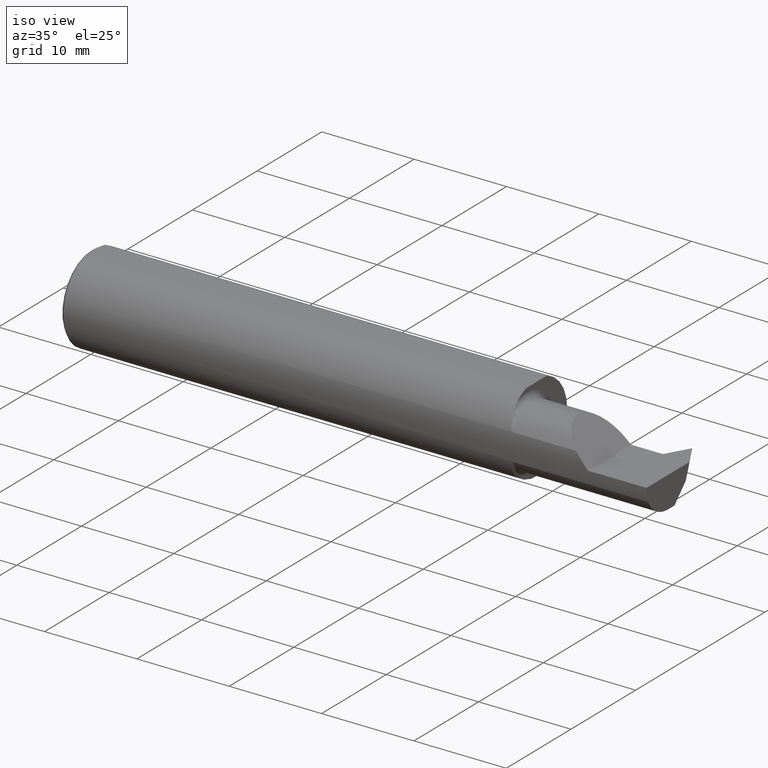
[diagram: clean part render]
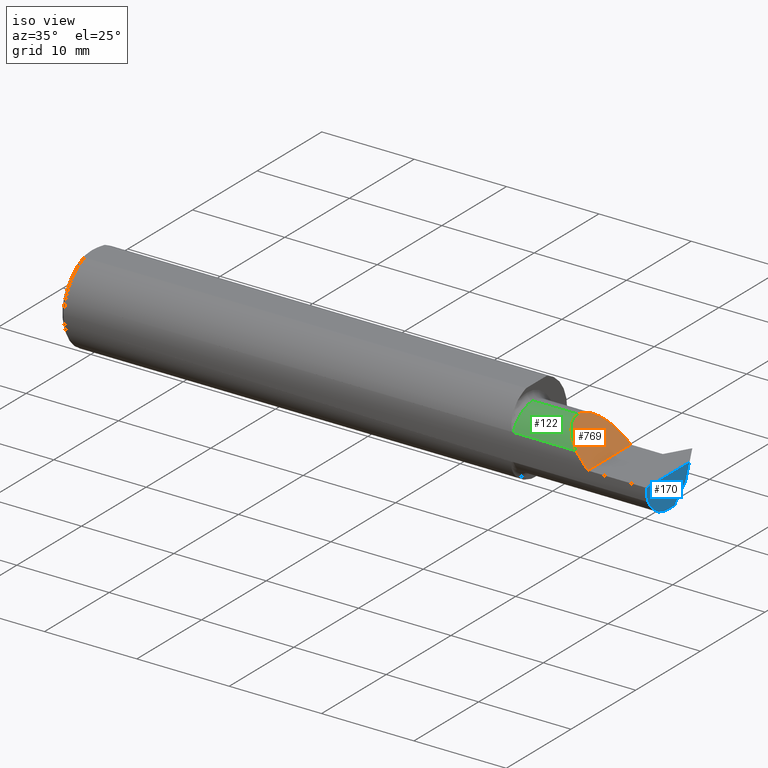
[diagram: same view with three faces highlighted in distinct colors, each labeled with its STEP entity id]
A machine part, iso view with three faces highlighted in distinct colors.
Their STEP definitions:

[orange] entity #769 — the highlighted planar face has unit normal (-0.7071, 0, -0.7071).
#38 = EDGE_CURVE ( 'NONE', #373, #599, #238, .T. ) ;
#106 = CARTESIAN_POINT ( 'NONE',  ( 2.145120520002822495, -0.1556549305389025584, 0.1048794799971762975 ) ) ;
#107 = EDGE_CURVE ( 'NONE', #369, #373, #351, .T. ) ;
#163 = ORIENTED_EDGE ( 'NONE', *, *, #107, .F. ) ;
#169 = ORIENTED_EDGE ( 'NONE', *, *, #188, .T. ) ;
#188 = EDGE_CURVE ( 'NONE', #369, #701, #266, .T. ) ;
#220 = CARTESIAN_POINT ( 'NONE',  ( 2.250000000000000000, -0.1873499999999999888, 9.184850993605143507E-17 ) ) ;
#238 =( BOUNDED_CURVE ( )  B_SPLINE_CURVE ( 3, ( #879, #106, #799, #386 ),
 .UNSPECIFIED., .F., .F. ) 
 B_SPLINE_CURVE_WITH_KNOTS ( ( 4, 4 ),
 ( 5.157869252308511676, 6.283185307179586232 ),
 .UNSPECIFIED. ) 
 CURVE ( )  GEOMETRIC_REPRESENTATION_ITEM ( )  RATIONAL_B_SPLINE_CURVE ( ( 1.000000000000000000, 0.8972268081433718567, 0.8972268081433718567, 1.000000000000000000 ) ) 
 REPRESENTATION_ITEM ( '' )  );
#255 = ORIENTED_EDGE ( 'NONE', *, *, #586, .F. ) ;
#266 = LINE ( 'NONE', #692, #800 ) ;
#340 = CARTESIAN_POINT ( 'NONE',  ( 2.192691453216395914, -0.1783697086546688348, 0.05730854678360401688 ) ) ;
#349 = FACE_OUTER_BOUND ( 'NONE', #658, .T. ) ;
#351 =( BOUNDED_CURVE ( )  B_SPLINE_CURVE ( 3, ( #517, #735, #665, #340 ),
 .UNSPECIFIED., .F., .F. ) 
 B_SPLINE_CURVE_WITH_KNOTS ( ( 4, 4 ),
 ( 4.712388980384690562, 5.023262387692875919 ),
 .UNSPECIFIED. ) 
 CURVE ( )  GEOMETRIC_REPRESENTATION_ITEM ( )  RATIONAL_B_SPLINE_CURVE ( ( 1.000000000000000000, 0.9919626788073498957, 0.9919626788073498957, 1.000000000000000000 ) ) 
 REPRESENTATION_ITEM ( '' )  );
#361 = CARTESIAN_POINT ( 'NONE',  ( 2.250000000000000000, -0.2500000000000000555, 9.184850993605143507E-17 ) ) ;
#369 = VERTEX_POINT ( 'NONE', #220 ) ;
#373 = VERTEX_POINT ( 'NONE', #502 ) ;
#386 = CARTESIAN_POINT ( 'NONE',  ( 2.116999999999998661, -0.05835000000000021420, 0.1330000000000001736 ) ) ;
#420 = DIRECTION ( 'NONE',  ( -0.7071067811865511255, 0.000000000000000000, 0.7071067811865440200 ) ) ;
#467 = CARTESIAN_POINT ( 'NONE',  ( 2.250000000000000000, 0.07464999999999995250, 2.204364238465232864E-16 ) ) ;
#496 = DIRECTION ( 'NONE',  ( -0.7071067811865440200, 0.000000000000000000, -0.7071067811865511255 ) ) ;
#502 = CARTESIAN_POINT ( 'NONE',  ( 2.192691453216395914, -0.1783697086546688348, 0.05730854678360401688 ) ) ;
#514 =( BOUNDED_CURVE ( )  B_SPLINE_CURVE ( 3, ( #536, #750, #756, #467 ),
 .UNSPECIFIED., .F., .F. ) 
 B_SPLINE_CURVE_WITH_KNOTS ( ( 4, 4 ),
 ( 0.000000000000000000, 1.570796326794895892 ),
 .UNSPECIFIED. ) 
 CURVE ( )  GEOMETRIC_REPRESENTATION_ITEM ( )  RATIONAL_B_SPLINE_CURVE ( ( 1.000000000000000000, 0.8047378541243652705, 0.8047378541243652705, 1.000000000000000000 ) ) 
 REPRESENTATION_ITEM ( '' )  );
#517 = CARTESIAN_POINT ( 'NONE',  ( 2.250000000000000000, -0.1873499999999999888, 9.184850993605143507E-17 ) ) ;
#536 = CARTESIAN_POINT ( 'NONE',  ( 2.116999999999998661, -0.05835000000000021420, 0.1330000000000001736 ) ) ;
#583 = PLANE ( 'NONE',  #655 ) ;
#586 = EDGE_CURVE ( 'NONE', #599, #701, #514, .T. ) ;
#599 = VERTEX_POINT ( 'NONE', #820 ) ;
#611 = CARTESIAN_POINT ( 'NONE',  ( 2.250000000000000000, 0.07464999999999995250, 2.204364238465232864E-16 ) ) ;
#655 = AXIS2_PLACEMENT_3D ( 'NONE', #361, #496, #420 ) ;
#658 = EDGE_LOOP ( 'NONE', ( #790, #163, #169, #255 ) ) ;
#665 = CARTESIAN_POINT ( 'NONE',  ( 2.211249739839921347, -0.1843323154515825735, 0.03875026016007859092 ) ) ;
#692 = CARTESIAN_POINT ( 'NONE',  ( 2.250000000000000000, -0.2500000000000000555, 9.184850993605143507E-17 ) ) ;
#701 = VERTEX_POINT ( 'NONE', #611 ) ;
#735 = CARTESIAN_POINT ( 'NONE',  ( 2.230507368514858868, -0.1873500000000000165, 0.01949263148514139912 ) ) ;
#750 = CARTESIAN_POINT ( 'NONE',  ( 2.116999999999998661, 0.01955959620437818999, 0.1330000000000002014 ) ) ;
#756 = CARTESIAN_POINT ( 'NONE',  ( 2.172090403795620794, 0.07464999999999989699, 0.07790959620437852562 ) ) ;
#769 = ADVANCED_FACE ( 'NONE', ( #349 ), #583, .F. ) ;
#790 = ORIENTED_EDGE ( 'NONE', *, *, #38, .F. ) ;
#799 = CARTESIAN_POINT ( 'NONE',  ( 2.116999999999998661, -0.1110657930003779298, 0.1330000000000002014 ) ) ;
#800 = VECTOR ( 'NONE', #834, 39.37007874015748143 ) ;
#820 = CARTESIAN_POINT ( 'NONE',  ( 2.116999999999998661, -0.05835000000000021420, 0.1330000000000001736 ) ) ;
#834 = DIRECTION ( 'NONE',  ( -0.000000000000000000, 1.000000000000000000, -0.000000000000000000 ) ) ;
#879 = CARTESIAN_POINT ( 'NONE',  ( 2.192691453216395914, -0.1783697086546688348, 0.05730854678360401688 ) ) ;

[blue] entity #170 — the highlighted planar face has unit normal (-1, 0, -0).
#51 = DIRECTION ( 'NONE',  ( 0.000000000000000000, 0.000000000000000000, 1.000000000000000000 ) ) ;
#77 = VERTEX_POINT ( 'NONE', #752 ) ;
#78 = EDGE_CURVE ( 'NONE', #442, #317, #391, .T. ) ;
#83 = AXIS2_PLACEMENT_3D ( 'NONE', #195, #190, #686 ) ;
#120 = DIRECTION ( 'NONE',  ( 0.000000000000000000, 0.3401001459858907228, 0.9403892229818331394 ) ) ;
#133 = LINE ( 'NONE', #413, #506 ) ;
#170 = ADVANCED_FACE ( 'NONE', ( #347 ), #546, .F. ) ;
#171 = LINE ( 'NONE', #451, #418 ) ;
#190 = DIRECTION ( 'NONE',  ( 1.000000000000000000, 0.000000000000000000, 0.000000000000000000 ) ) ;
#194 = CARTESIAN_POINT ( 'NONE',  ( 2.500000000000000000, 0.000000000000000000, 0.000000000000000000 ) ) ;
#195 = CARTESIAN_POINT ( 'NONE',  ( 2.500000000000000000, -0.05835000000000021420, 0.000000000000000000 ) ) ;
#227 = CARTESIAN_POINT ( 'NONE',  ( 2.500000000000000000, -0.1873499999999999888, 0.000000000000000000 ) ) ;
#263 = DIRECTION ( 'NONE',  ( -1.000000000000000000, 0.000000000000000000, -0.000000000000000000 ) ) ;
#294 = CARTESIAN_POINT ( 'NONE',  ( 2.500000000000000000, -0.1783697086546688626, -0.05730854678360295523 ) ) ;
#317 = VERTEX_POINT ( 'NONE', #794 ) ;
#324 = LINE ( 'NONE', #882, #746 ) ;
#347 = FACE_OUTER_BOUND ( 'NONE', #569, .T. ) ;
#383 = DIRECTION ( 'NONE',  ( 0.000000000000000000, -1.000000000000000000, 0.000000000000000000 ) ) ;
#391 = LINE ( 'NONE', #680, #845 ) ;
#413 = CARTESIAN_POINT ( 'NONE',  ( 2.500000000000000000, 0.05101335071013886335, -0.06499999999999907241 ) ) ;
#418 = VECTOR ( 'NONE', #383, 39.37007874015748143 ) ;
#434 = AXIS2_PLACEMENT_3D ( 'NONE', #194, #909, #51 ) ;
#442 = VERTEX_POINT ( 'NONE', #733 ) ;
#443 = ORIENTED_EDGE ( 'NONE', *, *, #560, .T. ) ;
#451 = CARTESIAN_POINT ( 'NONE',  ( 2.500000000000000000, 0.000000000000000000, 0.000000000000000000 ) ) ;
#453 = ORIENTED_EDGE ( 'NONE', *, *, #661, .F. ) ;
#476 = CIRCLE ( 'NONE', #83, 0.1330000000000001181 ) ;
#489 = AXIS2_PLACEMENT_3D ( 'NONE', #830, #263, #684 ) ;
#503 = EDGE_CURVE ( 'NONE', #77, #712, #324, .T. ) ;
#506 = VECTOR ( 'NONE', #696, 39.37007874015748143 ) ;
#522 = ORIENTED_EDGE ( 'NONE', *, *, #912, .T. ) ;
#527 = DIRECTION ( 'NONE',  ( 0.000000000000000000, 1.000000000000000000, 0.000000000000000000 ) ) ;
#546 = PLANE ( 'NONE',  #489 ) ;
#548 = CIRCLE ( 'NONE', #434, 0.1873499999999999888 ) ;
#560 = EDGE_CURVE ( 'NONE', #317, #804, #171, .T. ) ;
#569 = EDGE_LOOP ( 'NONE', ( #626, #917, #443, #453, #522, #585 ) ) ;
#585 = ORIENTED_EDGE ( 'NONE', *, *, #503, .T. ) ;
#626 = ORIENTED_EDGE ( 'NONE', *, *, #689, .F. ) ;
#661 = EDGE_CURVE ( 'NONE', #736, #804, #548, .T. ) ;
#680 = CARTESIAN_POINT ( 'NONE',  ( 2.500000000000000000, 0.06590145616573735154, -0.02383384912853583198 ) ) ;
#684 = DIRECTION ( 'NONE',  ( -0.000000000000000000, 0.000000000000000000, 1.000000000000000000 ) ) ;
#686 = DIRECTION ( 'NONE',  ( 0.000000000000000000, 1.797268416884382025E-15, 1.000000000000000000 ) ) ;
#689 = EDGE_CURVE ( 'NONE', #442, #712, #133, .T. ) ;
#696 = DIRECTION ( 'NONE',  ( 0.000000000000000000, -0.7071067811865479058, -0.7071067811865472397 ) ) ;
#712 = VERTEX_POINT ( 'NONE', #847 ) ;
#733 = CARTESIAN_POINT ( 'NONE',  ( 2.500000000000000000, 0.05101335071013886335, -0.06499999999999907241 ) ) ;
#736 = VERTEX_POINT ( 'NONE', #294 ) ;
#746 = VECTOR ( 'NONE', #527, 39.37007874015748143 ) ;
#752 = CARTESIAN_POINT ( 'NONE',  ( 2.500000000000000000, -0.05835000000000004766, -0.1330000000000000626 ) ) ;
#794 = CARTESIAN_POINT ( 'NONE',  ( 2.500000000000000000, 0.07452118017992603871, 0.000000000000000000 ) ) ;
#804 = VERTEX_POINT ( 'NONE', #227 ) ;
#830 = CARTESIAN_POINT ( 'NONE',  ( 2.500000000000000000, 0.000000000000000000, 0.000000000000000000 ) ) ;
#845 = VECTOR ( 'NONE', #120, 39.37007874015748143 ) ;
#847 = CARTESIAN_POINT ( 'NONE',  ( 2.500000000000000000, -0.01698664928986216155, -0.1330000000000000626 ) ) ;
#882 = CARTESIAN_POINT ( 'NONE',  ( 2.500000000000000000, 0.000000000000000000, -0.1330000000000000626 ) ) ;
#909 = DIRECTION ( 'NONE',  ( -1.000000000000000000, -0.000000000000000000, -0.000000000000000000 ) ) ;
#912 = EDGE_CURVE ( 'NONE', #736, #77, #476, .T. ) ;
#917 = ORIENTED_EDGE ( 'NONE', *, *, #78, .T. ) ;

[green] entity #122 — the highlighted cylindrical surface (partial cylindrical patch) has radius 3.3782 mm, axis along (-1, -0, -0).
#22 = EDGE_CURVE ( 'NONE', #57, #773, #842, .T. ) ;
#38 = EDGE_CURVE ( 'NONE', #373, #599, #238, .T. ) ;
#54 = CARTESIAN_POINT ( 'NONE',  ( 2.153260140802780942, -0.1783697086546692234, 0.05730854678360303156 ) ) ;
#57 = VERTEX_POINT ( 'NONE', #884 ) ;
#106 = CARTESIAN_POINT ( 'NONE',  ( 2.145120520002822495, -0.1556549305389025584, 0.1048794799971762975 ) ) ;
#122 = ADVANCED_FACE ( 'NONE', ( #630 ), #558, .T. ) ;
#130 = DIRECTION ( 'NONE',  ( -1.000000000000000000, -0.000000000000000000, -0.000000000000000000 ) ) ;
#135 = DIRECTION ( 'NONE',  ( -1.000000000000000000, -0.000000000000000000, -0.000000000000000000 ) ) ;
#145 = EDGE_CURVE ( 'NONE', #599, #773, #422, .T. ) ;
#155 = CARTESIAN_POINT ( 'NONE',  ( 1.924999999999999822, -0.05835000000000021420, 0.1330000000000002014 ) ) ;
#231 = VECTOR ( 'NONE', #269, 39.37007874015748143 ) ;
#238 =( BOUNDED_CURVE ( )  B_SPLINE_CURVE ( 3, ( #879, #106, #799, #386 ),
 .UNSPECIFIED., .F., .F. ) 
 B_SPLINE_CURVE_WITH_KNOTS ( ( 4, 4 ),
 ( 5.157869252308511676, 6.283185307179586232 ),
 .UNSPECIFIED. ) 
 CURVE ( )  GEOMETRIC_REPRESENTATION_ITEM ( )  RATIONAL_B_SPLINE_CURVE ( ( 1.000000000000000000, 0.8972268081433718567, 0.8972268081433718567, 1.000000000000000000 ) ) 
 REPRESENTATION_ITEM ( '' )  );
#239 = ORIENTED_EDGE ( 'NONE', *, *, #145, .T. ) ;
#248 = CARTESIAN_POINT ( 'NONE',  ( 1.924999999999999822, -0.05835000000000021420, 0.000000000000000000 ) ) ;
#269 = DIRECTION ( 'NONE',  ( 1.000000000000000000, 0.000000000000000000, 0.000000000000000000 ) ) ;
#327 = DIRECTION ( 'NONE',  ( 0.000000000000000000, 0.000000000000000000, 1.000000000000000000 ) ) ;
#330 = LINE ( 'NONE', #54, #231 ) ;
#373 = VERTEX_POINT ( 'NONE', #502 ) ;
#384 = DIRECTION ( 'NONE',  ( -1.000000000000000000, -0.000000000000000000, -0.000000000000000000 ) ) ;
#386 = CARTESIAN_POINT ( 'NONE',  ( 2.116999999999998661, -0.05835000000000021420, 0.1330000000000001736 ) ) ;
#401 = AXIS2_PLACEMENT_3D ( 'NONE', #248, #384, #465 ) ;
#422 = LINE ( 'NONE', #901, #757 ) ;
#465 = DIRECTION ( 'NONE',  ( 0.000000000000000000, 0.000000000000000000, 1.000000000000000000 ) ) ;
#475 = CARTESIAN_POINT ( 'NONE',  ( 1.900000000000000133, -0.05835000000000021420, 0.000000000000000000 ) ) ;
#477 = ORIENTED_EDGE ( 'NONE', *, *, #38, .T. ) ;
#502 = CARTESIAN_POINT ( 'NONE',  ( 2.192691453216395914, -0.1783697086546688348, 0.05730854678360401688 ) ) ;
#558 = CYLINDRICAL_SURFACE ( 'NONE', #608, 0.1330000000000001736 ) ;
#599 = VERTEX_POINT ( 'NONE', #820 ) ;
#605 = EDGE_CURVE ( 'NONE', #57, #373, #330, .T. ) ;
#608 = AXIS2_PLACEMENT_3D ( 'NONE', #475, #135, #327 ) ;
#630 = FACE_OUTER_BOUND ( 'NONE', #723, .T. ) ;
#662 = ORIENTED_EDGE ( 'NONE', *, *, #605, .T. ) ;
#723 = EDGE_LOOP ( 'NONE', ( #477, #239, #777, #662 ) ) ;
#757 = VECTOR ( 'NONE', #130, 39.37007874015748143 ) ;
#773 = VERTEX_POINT ( 'NONE', #155 ) ;
#777 = ORIENTED_EDGE ( 'NONE', *, *, #22, .F. ) ;
#799 = CARTESIAN_POINT ( 'NONE',  ( 2.116999999999998661, -0.1110657930003779298, 0.1330000000000002014 ) ) ;
#820 = CARTESIAN_POINT ( 'NONE',  ( 2.116999999999998661, -0.05835000000000021420, 0.1330000000000001736 ) ) ;
#842 = CIRCLE ( 'NONE', #401, 0.1330000000000002014 ) ;
#879 = CARTESIAN_POINT ( 'NONE',  ( 2.192691453216395914, -0.1783697086546688348, 0.05730854678360401688 ) ) ;
#884 = CARTESIAN_POINT ( 'NONE',  ( 1.924999999999999822, -0.1783697086546690014, 0.05730854678360355198 ) ) ;
#901 = CARTESIAN_POINT ( 'NONE',  ( 1.900000000000000133, -0.05835000000000021420, 0.1330000000000001736 ) ) ;